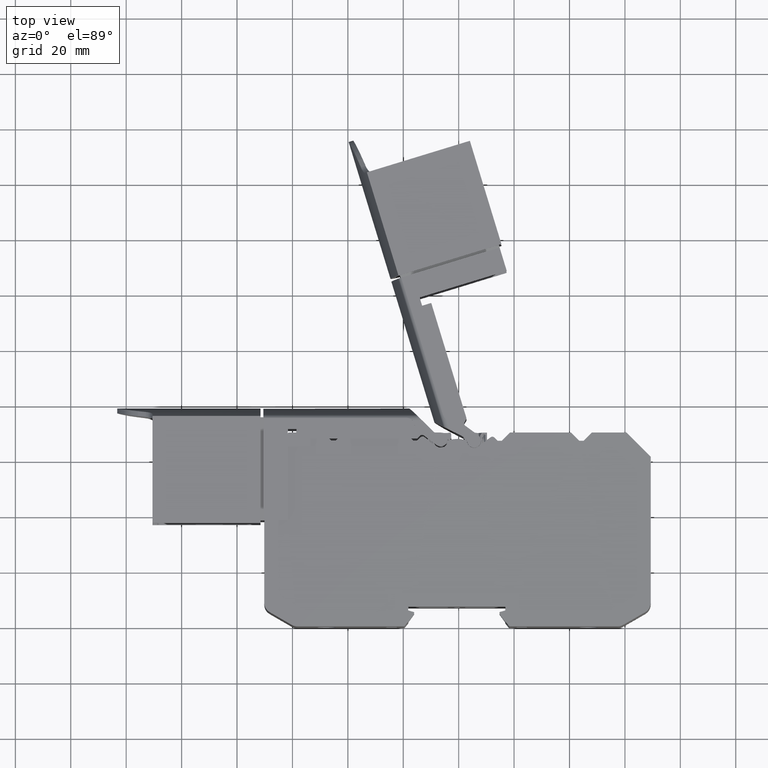
[diagram: clean part render]
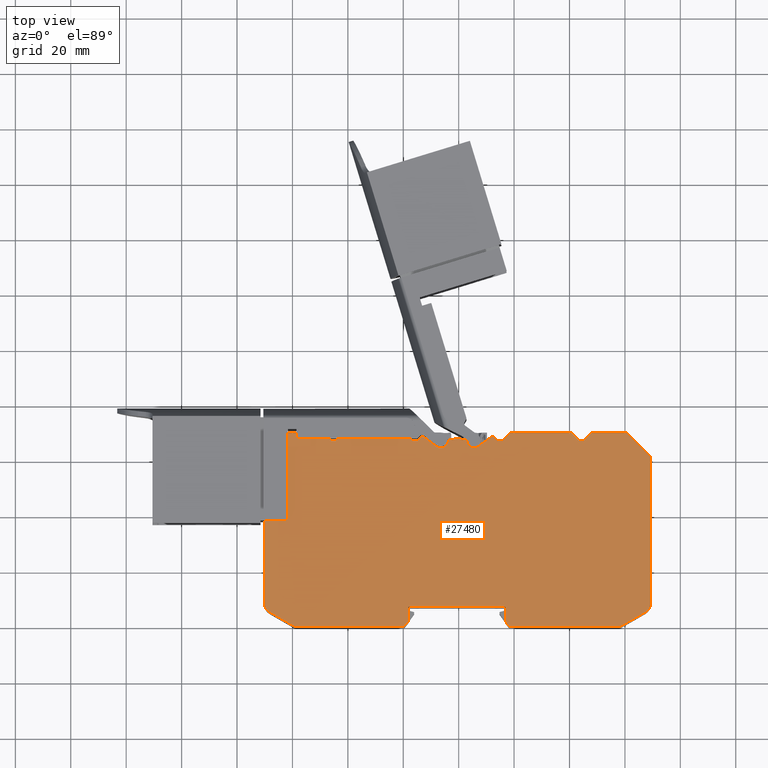
[diagram: same view with one face highlighted and labeled with its STEP entity id]
A machine part, top view. The second image highlights one B-rep face of the part: STEP entity #27480.
In plain terms, the highlighted planar face has unit normal (0, 0, -1).
Its self-contained STEP definition (entity closure, byte-faithful):
#757 = VERTEX_POINT ( 'NONE', #40493 ) ;
#787 = VERTEX_POINT ( 'NONE', #40451 ) ;
#795 = VERTEX_POINT ( 'NONE', #40452 ) ;
#798 = VERTEX_POINT ( 'NONE', #40457 ) ;
#835 = VERTEX_POINT ( 'NONE', #40529 ) ;
#844 = VERTEX_POINT ( 'NONE', #40540 ) ;
#925 = VERTEX_POINT ( 'NONE', #40546 ) ;
#927 = VERTEX_POINT ( 'NONE', #40536 ) ;
#933 = VERTEX_POINT ( 'NONE', #40557 ) ;
#1645 = VERTEX_POINT ( 'NONE', #40685 ) ;
#1654 = VERTEX_POINT ( 'NONE', #40705 ) ;
#1656 = VERTEX_POINT ( 'NONE', #40692 ) ;
#1678 = VERTEX_POINT ( 'NONE', #40683 ) ;
#1772 = VERTEX_POINT ( 'NONE', #38809 ) ;
#1786 = VERTEX_POINT ( 'NONE', #38825 ) ;
#1916 = VERTEX_POINT ( 'NONE', #28815 ) ;
#2054 = VERTEX_POINT ( 'NONE', #28927 ) ;
#2056 = VERTEX_POINT ( 'NONE', #28945 ) ;
#2057 = VERTEX_POINT ( 'NONE', #28978 ) ;
#2061 = VERTEX_POINT ( 'NONE', #28979 ) ;
#2064 = VERTEX_POINT ( 'NONE', #28970 ) ;
#2065 = VERTEX_POINT ( 'NONE', #28962 ) ;
#2074 = VERTEX_POINT ( 'NONE', #28943 ) ;
#2075 = VERTEX_POINT ( 'NONE', #28923 ) ;
#2082 = VERTEX_POINT ( 'NONE', #28928 ) ;
#2084 = VERTEX_POINT ( 'NONE', #28952 ) ;
#2085 = VERTEX_POINT ( 'NONE', #28984 ) ;
#2088 = VERTEX_POINT ( 'NONE', #28954 ) ;
#2091 = VERTEX_POINT ( 'NONE', #28973 ) ;
#2093 = VERTEX_POINT ( 'NONE', #28977 ) ;
#2922 = CARTESIAN_POINT ( 'NONE',  ( -14.92803972407406100, 286.9983646488885800, 34.17996959994485500 ) ) ;
#2930 = CARTESIAN_POINT ( 'NONE',  ( -16.43301293408643100, 286.9983646488885800, 34.17996959994485500 ) ) ;
#2938 = CARTESIAN_POINT ( 'NONE',  ( 2.883818337371597500, 286.9183139729704000, 34.17996959994511000 ) ) ;
#2950 = DIRECTION ( 'NONE',  ( 1.396105453466134000E-014, 3.381896538890620300E-014, -1.000000000000000000 ) ) ;
#2953 = FACE_OUTER_BOUND ( 'NONE', #9561, .T. ) ;
#2960 = DIRECTION ( 'NONE',  ( 0.0000000000000000000, 1.000000000000000000, 3.381896538890620300E-014 ) ) ;
#2966 = CARTESIAN_POINT ( 'NONE',  ( 76.26451876621800400, 196.8919405279740100, 34.17996959994309900 ) ) ;
#2970 = PLANE ( 'NONE',  #3385 ) ;
#2977 = CARTESIAN_POINT ( 'NONE',  ( -3.749805739735257800, 286.9183139729704500, 34.17996959994503200 ) ) ;
#3030 = CARTESIAN_POINT ( 'NONE',  ( -43.71668567164122300, 287.7146863452242100, 34.17996959994468400 ) ) ;
#3096 = CARTESIAN_POINT ( 'NONE',  ( 2.563264150888267900, 287.2253406078467600, 34.17996959994512500 ) ) ;
#3099 = CARTESIAN_POINT ( 'NONE',  ( -3.429251553251884100, 287.2253406078467600, 34.17996959994503900 ) ) ;
#3385 = AXIS2_PLACEMENT_3D ( 'NONE', #2966, #2950, #2960 ) ;
#3906 = CARTESIAN_POINT ( 'NONE',  ( -45.93301317540946400, 286.9983642033046200, 34.17996959994444200 ) ) ;
#3962 = CARTESIAN_POINT ( 'NONE',  ( -44.43300886197862100, 286.9983642468176900, 34.17996959994450600 ) ) ;
#4047 = CARTESIAN_POINT ( 'NONE',  ( 11.55811169425197200, 288.2903461235462700, 34.17996959994529500 ) ) ;
#4056 = CARTESIAN_POINT ( 'NONE',  ( 12.15686034543121300, 288.4894091393139200, 34.17996959994531600 ) ) ;
#4082 = CARTESIAN_POINT ( 'NONE',  ( 5.567177532460623200, 284.4454128013246100, 34.17996959994507500 ) ) ;
#4164 = CARTESIAN_POINT ( 'NONE',  ( 12.15686034543121300, 288.4894091393139200, 34.17996959994531600 ) ) ;
#4186 = CARTESIAN_POINT ( 'NONE',  ( 11.72949561307907200, 288.4184659285392100, 34.17996959994530200 ) ) ;
#4191 = CARTESIAN_POINT ( 'NONE',  ( 11.94288106591101000, 288.4894091393139200, 34.17996959994530900 ) ) ;
#4194 = CARTESIAN_POINT ( 'NONE',  ( 11.55811169425197200, 288.2903461235462700, 34.17996959994529500 ) ) ;
#4212 = CARTESIAN_POINT ( 'NONE',  ( -6.433164934824338500, 284.4454128013246100, 34.17996959994492600 ) ) ;
#4218 = CARTESIAN_POINT ( 'NONE',  ( -4.035739567493349600, 286.1277311240090700, 34.17996959994503200 ) ) ;
#4223 = CARTESIAN_POINT ( 'NONE',  ( -4.212591472419614300, 285.6387534015984200, 34.17996959994501800 ) ) ;
#4228 = CARTESIAN_POINT ( 'NONE',  ( -5.394404735934530800, 284.6092736201822500, 34.17996959994496800 ) ) ;
#4235 = CARTESIAN_POINT ( 'NONE',  ( -5.913188195610857200, 284.4454128013246100, 34.17996959994495400 ) ) ;
#4236 = CARTESIAN_POINT ( 'NONE',  ( -4.543129591019273900, 285.2066293474853800, 34.17996959994499700 ) ) ;
#4321 = CARTESIAN_POINT ( 'NONE',  ( -1.311753776222546400, 287.6846125013441300, 34.17996959994508900 ) ) ;
#4336 = CARTESIAN_POINT ( 'NONE',  ( -0.4329937011818170100, 287.6846106740138700, 34.17996959994510300 ) ) ;
#4338 = CARTESIAN_POINT ( 'NONE',  ( 7.093634224713057700, 284.9529063413944500, 34.17996959994511000 ) ) ;
#4339 = CARTESIAN_POINT ( 'NONE',  ( 6.872296683494587600, 284.7877280929262700, 34.17996959994508900 ) ) ;
#4357 = CARTESIAN_POINT ( 'NONE',  ( -2.190443583997348000, 287.5681152280287700, 34.17996959994507500 ) ) ;
#4366 = CARTESIAN_POINT ( 'NONE',  ( -3.038843997621544900, 287.3391259360650500, 34.17996959994505300 ) ) ;
#4374 = CARTESIAN_POINT ( 'NONE',  ( 6.110725816094513300, 284.4890401531324100, 34.17996959994506800 ) ) ;
#4391 = CARTESIAN_POINT ( 'NONE',  ( 5.842624481265537500, 284.4456408269697400, 34.17996959994508900 ) ) ;
#4395 = CARTESIAN_POINT ( 'NONE',  ( 5.567177532460623200, 284.4454128013246100, 34.17996959994507500 ) ) ;
#4416 = CARTESIAN_POINT ( 'NONE',  ( 6.632237257800623500, 284.6621814064932300, 34.17996959994509600 ) ) ;
#6941 = VERTEX_POINT ( 'NONE', #29031 ) ;
#6990 = VERTEX_POINT ( 'NONE', #29014 ) ;
#6994 = VERTEX_POINT ( 'NONE', #29028 ) ;
#6999 = VERTEX_POINT ( 'NONE', #29036 ) ;
#7021 = VERTEX_POINT ( 'NONE', #29018 ) ;
#7025 = VERTEX_POINT ( 'NONE', #28996 ) ;
#7041 = VERTEX_POINT ( 'NONE', #29006 ) ;
#7049 = VERTEX_POINT ( 'NONE', #29027 ) ;
#7085 = CARTESIAN_POINT ( 'NONE',  ( -13.02277790567889000, 288.4894091393138100, 34.17996959994495400 ) ) ;
#7086 = VERTEX_POINT ( 'NONE', #29007 ) ;
#7097 = VERTEX_POINT ( 'NONE', #29049 ) ;
#7100 = VERTEX_POINT ( 'NONE', #28994 ) ;
#7107 = CARTESIAN_POINT ( 'NONE',  ( -13.72988468686487800, 288.1965159205007600, 34.17996959994493300 ) ) ;
#7108 = VERTEX_POINT ( 'NONE', #29069 ) ;
#7141 = CARTESIAN_POINT ( 'NONE',  ( -13.28457729347779200, 288.4894091393138100, 34.17996959994494700 ) ) ;
#7147 = CARTESIAN_POINT ( 'NONE',  ( -13.54476456444168700, 288.3816360429238400, 34.17996959994494000 ) ) ;
#7591 = VECTOR ( 'NONE', #26436, 1000.000000000000000 ) ;
#7598 = VECTOR ( 'NONE', #26495, 1000.000000000000000 ) ;
#7601 = AXIS2_PLACEMENT_3D ( 'NONE', #26309, #26324, #26310 ) ;
#7608 = VECTOR ( 'NONE', #26419, 1000.000000000000000 ) ;
#7609 = VECTOR ( 'NONE', #26406, 1000.000000000000000 ) ;
#7611 = VECTOR ( 'NONE', #26475, 1000.000000000000000 ) ;
#7621 = VECTOR ( 'NONE', #26331, 1000.000000000000000 ) ;
#7622 = VECTOR ( 'NONE', #26438, 1000.000000000000000 ) ;
#7625 = CIRCLE ( 'NONE', #7643, 4.000000000000003600 ) ;
#7626 = VECTOR ( 'NONE', #26446, 1000.000000000000000 ) ;
#7637 = VECTOR ( 'NONE', #26486, 1000.000000000000000 ) ;
#7643 = AXIS2_PLACEMENT_3D ( 'NONE', #26326, #26316, #26306 ) ;
#7954 = VECTOR ( 'NONE', #29737, 1000.000000000000000 ) ;
#7972 = VECTOR ( 'NONE', #29738, 1000.000000000000000 ) ;
#7977 = VECTOR ( 'NONE', #29878, 1000.000000000000000 ) ;
#7989 = VECTOR ( 'NONE', #29677, 1000.000000000000000 ) ;
#8008 = VECTOR ( 'NONE', #29860, 1000.000000000000200 ) ;
#8018 = VECTOR ( 'NONE', #32386, 1000.000000000000000 ) ;
#8021 = VECTOR ( 'NONE', #32478, 1000.000000000000000 ) ;
#8029 = VECTOR ( 'NONE', #28735, 1000.000000000000000 ) ;
#8034 = VECTOR ( 'NONE', #32590, 1000.000000000000000 ) ;
#8045 = VECTOR ( 'NONE', #29935, 1000.000000000000100 ) ;
#8057 = VECTOR ( 'NONE', #32375, 1000.000000000000100 ) ;
#8062 = VECTOR ( 'NONE', #32423, 1000.000000000000000 ) ;
#8066 = VECTOR ( 'NONE', #32512, 1000.000000000000000 ) ;
#8132 = VECTOR ( 'NONE', #32645, 1000.000000000000000 ) ;
#8288 = VECTOR ( 'NONE', #35218, 1000.000000000000000 ) ;
#8291 = VECTOR ( 'NONE', #35204, 1000.000000000000000 ) ;
#8293 = VECTOR ( 'NONE', #35219, 1000.000000000000100 ) ;
#8301 = VECTOR ( 'NONE', #35437, 1000.000000000000000 ) ;
#8305 = VECTOR ( 'NONE', #35399, 1000.000000000000100 ) ;
#8307 = VECTOR ( 'NONE', #35406, 1000.000000000000200 ) ;
#8314 = VECTOR ( 'NONE', #35417, 1000.000000000000000 ) ;
#8846 = VECTOR ( 'NONE', #15176, 1000.000000000000000 ) ;
#8918 = VECTOR ( 'NONE', #26225, 1000.000000000000100 ) ;
#9026 = VECTOR ( 'NONE', #16860, 1000.000000000000000 ) ;
#9031 = VECTOR ( 'NONE', #16932, 1000.000000000000100 ) ;
#9116 = CIRCLE ( 'NONE', #7601, 3.999999523161101900 ) ;
#9275 = VECTOR ( 'NONE', #21158, 1000.000000000000100 ) ;
#9561 = EDGE_LOOP ( 'NONE', ( #39969, #39952, #39962, #39922, #40003, #39960, #39992, #39995, #39990, #39994, #39978, #39970, #39949, #40030, #40032, #39935, #39930, #39976, #39946, #39933, #40034, #40026, #39942, #39988, #39965, #40028, #39967, #40078, #40011, #39955, #40081, #40082, #40111, #40113, #40015, #40046, #40108, #40116, #40099, #40076, #40021, #40085, #40023, #40070, #40036, #40115, #40100, #40060, #40090, #40120, #40089, #40042, #40101, #40062, #40104, #40083, #40040, #40102, #40052, #40066, #40117 ) ) ;
#10960 = CARTESIAN_POINT ( 'NONE',  ( -13.72988468686487800, 288.1965159205007600, 34.17996959994493300 ) ) ;
#10982 = CARTESIAN_POINT ( 'NONE',  ( -13.02277790567889000, 288.4894091393138100, 34.17996959994495400 ) ) ;
#10994 = CARTESIAN_POINT ( 'NONE',  ( -3.038843997621544900, 287.3391259360650500, 34.17996959994505300 ) ) ;
#11001 = CARTESIAN_POINT ( 'NONE',  ( -4.035739567493349600, 286.1277311240090700, 34.17996959994503200 ) ) ;
#11008 = CARTESIAN_POINT ( 'NONE',  ( -6.433164934824338500, 284.4454128013246100, 34.17996959994492600 ) ) ;
#11009 = CARTESIAN_POINT ( 'NONE',  ( 7.093634224713057700, 284.9529063413944500, 34.17996959994511000 ) ) ;
#11026 = CARTESIAN_POINT ( 'NONE',  ( -0.4329937011818170100, 287.6846106740138700, 34.17996959994510300 ) ) ;
#12023 = EDGE_CURVE ( 'NONE', #2057, #2074, #29679, .T. ) ;
#12024 = EDGE_CURVE ( 'NONE', #2084, #2091, #18757, .T. ) ;
#12031 = EDGE_CURVE ( 'NONE', #2093, #1772, #29736, .T. ) ;
#12032 = EDGE_CURVE ( 'NONE', #18525, #757, #18731, .T. ) ;
#12033 = EDGE_CURVE ( 'NONE', #925, #2064, #18738, .T. ) ;
#12034 = EDGE_CURVE ( 'NONE', #2075, #2085, #29744, .T. ) ;
#12043 = EDGE_CURVE ( 'NONE', #1786, #933, #29818, .T. ) ;
#12046 = EDGE_CURVE ( 'NONE', #2091, #2088, #18749, .T. ) ;
#12047 = EDGE_CURVE ( 'NONE', #18581, #1916, #18736, .T. ) ;
#12049 = EDGE_CURVE ( 'NONE', #37906, #2093, #18754, .T. ) ;
#12053 = EDGE_CURVE ( 'NONE', #36558, #1654, #29906, .T. ) ;
#12059 = EDGE_CURVE ( 'NONE', #927, #844, #29943, .T. ) ;
#12065 = EDGE_CURVE ( 'NONE', #798, #1656, #29938, .T. ) ;
#12085 = EDGE_CURVE ( 'NONE', #1645, #37902, #18704, .T. ) ;
#12088 = EDGE_CURVE ( 'NONE', #933, #927, #32400, .T. ) ;
#12091 = EDGE_CURVE ( 'NONE', #1678, #787, #32372, .T. ) ;
#12096 = EDGE_CURVE ( 'NONE', #1645, #36549, #32450, .T. ) ;
#12097 = EDGE_CURVE ( 'NONE', #36742, #18551, #18723, .T. ) ;
#12109 = EDGE_CURVE ( 'NONE', #787, #798, #32490, .T. ) ;
#12112 = EDGE_CURVE ( 'NONE', #1772, #1678, #32486, .T. ) ;
#12124 = EDGE_CURVE ( 'NONE', #757, #37860, #18726, .T. ) ;
#12134 = EDGE_CURVE ( 'NONE', #1916, #36691, #18700, .T. ) ;
#12136 = EDGE_CURVE ( 'NONE', #1656, #1786, #32600, .T. ) ;
#12147 = EDGE_CURVE ( 'NONE', #36517, #18563, #32663, .T. ) ;
#12411 = EDGE_CURVE ( 'NONE', #2064, #795, #18847, .T. ) ;
#12413 = EDGE_CURVE ( 'NONE', #18540, #2085, #18890, .T. ) ;
#12426 = EDGE_CURVE ( 'NONE', #2082, #2057, #35172, .T. ) ;
#12429 = EDGE_CURVE ( 'NONE', #2054, #2061, #35177, .T. ) ;
#12434 = EDGE_CURVE ( 'NONE', #835, #37652, #35243, .T. ) ;
#12462 = EDGE_CURVE ( 'NONE', #2065, #2075, #35384, .T. ) ;
#12467 = EDGE_CURVE ( 'NONE', #2061, #2056, #35382, .T. ) ;
#12470 = EDGE_CURVE ( 'NONE', #18559, #2065, #18853, .T. ) ;
#12471 = EDGE_CURVE ( 'NONE', #36432, #18535, #35389, .T. ) ;
#12473 = EDGE_CURVE ( 'NONE', #2074, #835, #35454, .T. ) ;
#15176 = DIRECTION ( 'NONE',  ( 1.000000000000000000, 1.547653322927949800E-016, 5.234003416212601300E-030 ) ) ;
#15189 = CARTESIAN_POINT ( 'NONE',  ( -15.09807472525005100, 286.9983646488885800, 34.17996959994444200 ) ) ;
#15209 = LINE ( 'NONE', #15189, #8846 ) ;
#16860 = DIRECTION ( 'NONE',  ( 1.000000000000000000, 1.547653322927949800E-016, 5.234003416212601300E-030 ) ) ;
#16873 = LINE ( 'NONE', #16883, #9026 ) ;
#16883 = CARTESIAN_POINT ( 'NONE',  ( -15.09807472525005100, 286.9983646488885800, 34.17996959994485500 ) ) ;
#16929 = LINE ( 'NONE', #16942, #9031 ) ;
#16932 = DIRECTION ( 'NONE',  ( -0.7071067811865474600, -0.7071067811865474600, -0.0000000000000000000 ) ) ;
#16942 = CARTESIAN_POINT ( 'NONE',  ( -44.43301121369088200, 286.9983608031745300, 34.17996959994468400 ) ) ;
#17158 = CARTESIAN_POINT ( 'NONE',  ( 2.563264150888267900, 287.2253406078467600, 34.17996959994512500 ) ) ;
#17160 = CARTESIAN_POINT ( 'NONE',  ( 2.709541871612905600, 287.1794603313850300, 34.17996959994512500 ) ) ;
#17165 = CARTESIAN_POINT ( 'NONE',  ( 2.831677549128464000, 287.0624788423040200, 34.17996959994512500 ) ) ;
#17167 = CARTESIAN_POINT ( 'NONE',  ( 2.883818337371597500, 286.9183139729704000, 34.17996959994511000 ) ) ;
#17352 = CARTESIAN_POINT ( 'NONE',  ( -3.429251553251884100, 287.2253406078467600, 34.17996959994503900 ) ) ;
#17389 = CARTESIAN_POINT ( 'NONE',  ( -3.749805739735257800, 286.9183139729704500, 34.17996959994503200 ) ) ;
#17392 = CARTESIAN_POINT ( 'NONE',  ( -3.697664951492138000, 287.0624788423040700, 34.17996959994503900 ) ) ;
#17393 = CARTESIAN_POINT ( 'NONE',  ( -3.575529273976539200, 287.1794603313851400, 34.17996959994503900 ) ) ;
#18525 = VERTEX_POINT ( 'NONE', #11009 ) ;
#18535 = VERTEX_POINT ( 'NONE', #10960 ) ;
#18540 = VERTEX_POINT ( 'NONE', #11008 ) ;
#18551 = VERTEX_POINT ( 'NONE', #10994 ) ;
#18559 = VERTEX_POINT ( 'NONE', #10982 ) ;
#18563 = VERTEX_POINT ( 'NONE', #11001 ) ;
#18581 = VERTEX_POINT ( 'NONE', #11026 ) ;
#18700 = B_SPLINE_CURVE_WITH_KNOTS ( 'NONE', 3,
 ( #32577, #32584, #32603, #32604 ),
 .UNSPECIFIED., .F., .F.,
 ( 4, 4 ),
 ( 0.0000000000000000000, 1.000000000000000000 ),
 .UNSPECIFIED. ) ;
#18704 = B_SPLINE_CURVE_WITH_KNOTS ( 'NONE', 3,
 ( #32398, #32397, #32401, #32399, #32384, #32369 ),
 .UNSPECIFIED., .F., .F.,
 ( 4, 2, 4 ),
 ( 0.0000000000000000000, 0.5000000000000000000, 1.000000000000000000 ),
 .UNSPECIFIED. ) ;
#18723 = B_SPLINE_CURVE_WITH_KNOTS ( 'NONE', 3,
 ( #32441, #32453, #32420, #32439 ),
 .UNSPECIFIED., .F., .F.,
 ( 4, 4 ),
 ( 0.0000000000000000000, 1.000000000000000000 ),
 .UNSPECIFIED. ) ;
#18726 = B_SPLINE_CURVE_WITH_KNOTS ( 'NONE', 3,
 ( #32560, #32551, #32552, #32529 ),
 .UNSPECIFIED., .F., .F.,
 ( 4, 4 ),
 ( 0.0000000000000000000, 1.000000000000000000 ),
 .UNSPECIFIED. ) ;
#18731 = B_SPLINE_CURVE_WITH_KNOTS ( 'NONE', 3,
 ( #29782, #29783, #29741, #29784 ),
 .UNSPECIFIED., .F., .F.,
 ( 4, 4 ),
 ( 0.0000000000000000000, 1.000000000000000000 ),
 .UNSPECIFIED. ) ;
#18736 = B_SPLINE_CURVE_WITH_KNOTS ( 'NONE', 3,
 ( #29847, #29791, #29826, #29832 ),
 .UNSPECIFIED., .F., .F.,
 ( 4, 4 ),
 ( 0.0000000000000000000, 1.000000000000000000 ),
 .UNSPECIFIED. ) ;
#18738 = B_SPLINE_CURVE_WITH_KNOTS ( 'NONE', 3,
 ( #29760, #29742, #29749, #29740 ),
 .UNSPECIFIED., .F., .F.,
 ( 4, 4 ),
 ( 0.0000000000000000000, 1.000000000000000000 ),
 .UNSPECIFIED. ) ;
#18749 = B_SPLINE_CURVE_WITH_KNOTS ( 'NONE', 3,
 ( #29842, #29792, #29823, #29821 ),
 .UNSPECIFIED., .F., .F.,
 ( 4, 4 ),
 ( 0.0000000000000000000, 1.000000000000000000 ),
 .UNSPECIFIED. ) ;
#18754 = B_SPLINE_CURVE_WITH_KNOTS ( 'NONE', 3,
 ( #29794, #29800, #29922, #29884 ),
 .UNSPECIFIED., .F., .F.,
 ( 4, 4 ),
 ( 0.0000000000000000000, 1.000000000000000000 ),
 .UNSPECIFIED. ) ;
#18757 = B_SPLINE_CURVE_WITH_KNOTS ( 'NONE', 3,
 ( #29720, #29675, #29759, #29730 ),
 .UNSPECIFIED., .F., .F.,
 ( 4, 4 ),
 ( 0.0000000000000000000, 1.000000000000000000 ),
 .UNSPECIFIED. ) ;
#18847 = B_SPLINE_CURVE_WITH_KNOTS ( 'NONE', 3,
 ( #35140, #35119, #35144, #35154 ),
 .UNSPECIFIED., .F., .F.,
 ( 4, 4 ),
 ( 0.0000000000000000000, 1.000000000000000000 ),
 .UNSPECIFIED. ) ;
#18853 = B_SPLINE_CURVE_WITH_KNOTS ( 'NONE', 3,
 ( #35395, #35378, #35390, #35415 ),
 .UNSPECIFIED., .F., .F.,
 ( 4, 4 ),
 ( 0.0000000000000000000, 1.000000000000000000 ),
 .UNSPECIFIED. ) ;
#18890 = B_SPLINE_CURVE_WITH_KNOTS ( 'NONE', 3,
 ( #35139, #35152, #35109, #35107, #35151, #35145 ),
 .UNSPECIFIED., .F., .F.,
 ( 4, 2, 4 ),
 ( 0.0000000000000000000, 0.5000000000000000000, 1.000000000000000000 ),
 .UNSPECIFIED. ) ;
#19311 = B_SPLINE_CURVE_WITH_KNOTS ( 'NONE', 3,
 ( #17158, #17160, #17165, #17167 ),
 .UNSPECIFIED., .F., .F.,
 ( 4, 4 ),
 ( 0.0000000000000000000, 1.000000000000000000 ),
 .UNSPECIFIED. ) ;
#19312 = B_SPLINE_CURVE_WITH_KNOTS ( 'NONE', 3,
 ( #17389, #17392, #17393, #17352 ),
 .UNSPECIFIED., .F., .F.,
 ( 4, 4 ),
 ( 0.0000000000000000000, 1.000000000000000000 ),
 .UNSPECIFIED. ) ;
#19488 = B_SPLINE_CURVE_WITH_KNOTS ( 'NONE', 3,
 ( #26338, #26339, #26359, #26362 ),
 .UNSPECIFIED., .F., .F.,
 ( 4, 4 ),
 ( 0.0000000000000000000, 1.000000000000000000 ),
 .UNSPECIFIED. ) ;
#19494 = B_SPLINE_CURVE_WITH_KNOTS ( 'NONE', 3,
 ( #26376, #26377, #26391, #26349 ),
 .UNSPECIFIED., .F., .F.,
 ( 4, 4 ),
 ( 0.0000000000000000000, 1.000000000000000000 ),
 .UNSPECIFIED. ) ;
#19507 = B_SPLINE_CURVE_WITH_KNOTS ( 'NONE', 3,
 ( #26290, #26254, #26298, #26255 ),
 .UNSPECIFIED., .F., .F.,
 ( 4, 4 ),
 ( 0.0000000000000000000, 1.000000000000000000 ),
 .UNSPECIFIED. ) ;
#19560 = B_SPLINE_CURVE_WITH_KNOTS ( 'NONE', 3,
 ( #26490, #26530, #26532, #26511, #26512, #26527 ),
 .UNSPECIFIED., .F., .F.,
 ( 4, 2, 4 ),
 ( 0.0000000000000000000, 0.5000000000000000000, 1.000000000000000000 ),
 .UNSPECIFIED. ) ;
#19601 = B_SPLINE_CURVE_WITH_KNOTS ( 'NONE', 3,
 ( #4366, #4357, #4321, #4336 ),
 .UNSPECIFIED., .F., .F.,
 ( 4, 4 ),
 ( 0.0000000000000000000, 1.000000000000000000 ),
 .UNSPECIFIED. ) ;
#19604 = B_SPLINE_CURVE_WITH_KNOTS ( 'NONE', 3,
 ( #4338, #4339, #4416, #4374, #4391, #4395 ),
 .UNSPECIFIED., .F., .F.,
 ( 4, 2, 4 ),
 ( 0.0000000000000000000, 0.5000000000000000000, 1.000000000000000000 ),
 .UNSPECIFIED. ) ;
#19606 = B_SPLINE_CURVE_WITH_KNOTS ( 'NONE', 3,
 ( #4194, #4186, #4191, #4164 ),
 .UNSPECIFIED., .F., .F.,
 ( 4, 4 ),
 ( 0.0000000000000000000, 1.000000000000000000 ),
 .UNSPECIFIED. ) ;
#19618 = B_SPLINE_CURVE_WITH_KNOTS ( 'NONE', 3,
 ( #4212, #4235, #4228, #4236, #4223, #4218 ),
 .UNSPECIFIED., .F., .F.,
 ( 4, 2, 4 ),
 ( 0.0000000000000000000, 0.5000000000000000000, 1.000000000000000000 ),
 .UNSPECIFIED. ) ;
#19738 = B_SPLINE_CURVE_WITH_KNOTS ( 'NONE', 3,
 ( #7107, #7147, #7141, #7085 ),
 .UNSPECIFIED., .F., .F.,
 ( 4, 4 ),
 ( 0.0000000000000000000, 1.000000000000000000 ),
 .UNSPECIFIED. ) ;
#21090 = CARTESIAN_POINT ( 'NONE',  ( -16.43301121369419700, 286.9983608031745300, 34.17996959994485500 ) ) ;
#21158 = DIRECTION ( 'NONE',  ( -0.7071067811865474600, 0.7071067811865474600, -0.0000000000000000000 ) ) ;
#21179 = LINE ( 'NONE', #21090, #9275 ) ;
#22602 = EDGE_CURVE ( 'NONE', #37652, #37644, #15209, .T. ) ;
#22870 = EDGE_CURVE ( 'NONE', #36479, #36432, #16873, .T. ) ;
#22885 = EDGE_CURVE ( 'NONE', #36558, #37644, #16929, .T. ) ;
#22927 = EDGE_CURVE ( 'NONE', #36691, #36549, #19311, .T. ) ;
#22961 = EDGE_CURVE ( 'NONE', #36517, #36742, #19312, .T. ) ;
#23305 = EDGE_CURVE ( 'NONE', #36479, #1654, #21179, .T. ) ;
#23896 = EDGE_CURVE ( 'NONE', #2056, #2082, #26203, .T. ) ;
#23919 = EDGE_CURVE ( 'NONE', #2088, #7025, #19507, .T. ) ;
#23935 = EDGE_CURVE ( 'NONE', #7086, #6994, #9116, .T. ) ;
#23947 = EDGE_CURVE ( 'NONE', #7049, #844, #26318, .T. ) ;
#23954 = EDGE_CURVE ( 'NONE', #7041, #6990, #7625, .T. ) ;
#23968 = EDGE_CURVE ( 'NONE', #6999, #6941, #19488, .T. ) ;
#23970 = EDGE_CURVE ( 'NONE', #7100, #925, #19494, .T. ) ;
#24002 = EDGE_CURVE ( 'NONE', #7021, #6999, #26354, .T. ) ;
#24014 = EDGE_CURVE ( 'NONE', #7025, #7086, #26403, .T. ) ;
#24018 = EDGE_CURVE ( 'NONE', #6994, #7041, #26400, .T. ) ;
#24023 = EDGE_CURVE ( 'NONE', #6990, #2054, #26428, .T. ) ;
#24030 = EDGE_CURVE ( 'NONE', #7097, #2084, #26415, .T. ) ;
#24037 = EDGE_CURVE ( 'NONE', #7108, #7097, #26481, .T. ) ;
#24049 = EDGE_CURVE ( 'NONE', #6941, #7100, #26466, .T. ) ;
#24065 = EDGE_CURVE ( 'NONE', #795, #7108, #26451, .T. ) ;
#24081 = EDGE_CURVE ( 'NONE', #7049, #7021, #19560, .T. ) ;
#26203 = LINE ( 'NONE', #26217, #8918 ) ;
#26217 = CARTESIAN_POINT ( 'NONE',  ( -61.70504443945393500, 289.7263318105647200, 34.17996959994430700 ) ) ;
#26225 = DIRECTION ( 'NONE',  ( 0.7071067811953493100, 0.7071067811777456100, 5.410970561755389600E-014 ) ) ;
#26254 = CARTESIAN_POINT ( 'NONE',  ( -19.61101592954322500, 220.0611905595741600, 34.17996959994255200 ) ) ;
#26255 = CARTESIAN_POINT ( 'NONE',  ( -19.89159177715297800, 219.9983640700941700, 34.17996959994258100 ) ) ;
#26290 = CARTESIAN_POINT ( 'NONE',  ( -19.51753938351058400, 220.1665737646147000, 34.17996959994257400 ) ) ;
#26298 = CARTESIAN_POINT ( 'NONE',  ( -19.75072487343553400, 219.9983640700950500, 34.17996959994255900 ) ) ;
#26306 = DIRECTION ( 'NONE',  ( 0.0000000000000000000, 1.000000000000000000, 3.295974604355930300E-014 ) ) ;
#26309 = CARTESIAN_POINT ( 'NONE',  ( -58.21764062778646600, 223.9983640700945100, 34.17996959994265900 ) ) ;
#26310 = DIRECTION ( 'NONE',  ( 0.0000000000000000000, 1.000000000000000000, 3.295974997268205000E-014 ) ) ;
#26316 = DIRECTION ( 'NONE',  ( 1.396105453466134000E-014, 3.382010624677094600E-014, -1.000000000000000000 ) ) ;
#26318 = LINE ( 'NONE', #26333, #7621 ) ;
#26324 = DIRECTION ( 'NONE',  ( 1.396105453466134000E-014, 3.381896538890620300E-014, -1.000000000000000000 ) ) ;
#26326 = CARTESIAN_POINT ( 'NONE',  ( -66.18301121369266600, 228.5971734726690800, 34.17996959994251700 ) ) ;
#26331 = DIRECTION ( 'NONE',  ( 6.399930961798722700E-007, 0.9999999999997952700, -0.0000000000000000000 ) ) ;
#26333 = CARTESIAN_POINT ( 'NONE',  ( 69.31800889733591500, 280.9973800334497000, 34.17996959994400200 ) ) ;
#26338 = CARTESIAN_POINT ( 'NONE',  ( 59.35168790805956700, 220.5342628679106600, 34.17996959994383100 ) ) ;
#26339 = CARTESIAN_POINT ( 'NONE',  ( 58.74708819205628200, 220.1851970591241900, 34.17996959994382400 ) ) ;
#26349 = CARTESIAN_POINT ( 'NONE',  ( 18.15337432028567800, 220.1665737646149500, 34.17996959994334800 ) ) ;
#26354 = LINE ( 'NONE', #26435, #7608 ) ;
#26359 = CARTESIAN_POINT ( 'NONE',  ( 58.04981976405368700, 219.9983645469333700, 34.17996959994381000 ) ) ;
#26362 = CARTESIAN_POINT ( 'NONE',  ( 57.35168814648018600, 219.9983642687867300, 34.17996959994372500 ) ) ;
#26376 = CARTESIAN_POINT ( 'NONE',  ( 18.52742671392761100, 219.9983640700942300, 34.17996959994356800 ) ) ;
#26377 = CARTESIAN_POINT ( 'NONE',  ( 18.38655981021064200, 219.9983640700953300, 34.17996959994374600 ) ) ;
#26391 = CARTESIAN_POINT ( 'NONE',  ( 18.24685086631834400, 220.0611905595745000, 34.17996959994375300 ) ) ;
#26396 = CARTESIAN_POINT ( 'NONE',  ( -68.43297629263304300, 225.2773892631455800, 34.17996959994251700 ) ) ;
#26400 = LINE ( 'NONE', #26396, #7591 ) ;
#26403 = LINE ( 'NONE', #26407, #7609 ) ;
#26406 = DIRECTION ( 'NONE',  ( -1.000000000000000000, -1.355354771754316200E-028, -3.105775495142951400E-042 ) ) ;
#26407 = CARTESIAN_POINT ( 'NONE',  ( -26.33297629263504900, 219.9983640700939100, 34.17996959994260900 ) ) ;
#26415 = LINE ( 'NONE', #26416, #7611 ) ;
#26416 = CARTESIAN_POINT ( 'NONE',  ( -18.18208253161217400, 196.8919405279740100, 34.17996959994177800 ) ) ;
#26418 = CARTESIAN_POINT ( 'NONE',  ( -70.18301121369266600, 228.7414908782774900, 34.17996959994226800 ) ) ;
#26419 = DIRECTION ( 'NONE',  ( -0.8660254037844387100, -0.4999999999999998900, -0.0000000000000000000 ) ) ;
#26428 = LINE ( 'NONE', #26418, #7622 ) ;
#26435 = CARTESIAN_POINT ( 'NONE',  ( 67.56702381132417700, 225.2773892631438500, 34.17996959994390200 ) ) ;
#26436 = DIRECTION ( 'NONE',  ( -0.8660254037844387100, 0.4999999999999998900, -0.0000000000000000000 ) ) ;
#26438 = DIRECTION ( 'NONE',  ( 1.585610419494235100E-028, 1.000000000000000000, 2.213679353728626000E-042 ) ) ;
#26446 = DIRECTION ( 'NONE',  ( -1.000000000000000000, -0.0000000000000000000, -0.0000000000000000000 ) ) ;
#26451 = LINE ( 'NONE', #26452, #7598 ) ;
#26452 = CARTESIAN_POINT ( 'NONE',  ( 16.81791746838814200, 196.8919405279740100, 34.17996959994226800 ) ) ;
#26466 = LINE ( 'NONE', #26478, #7637 ) ;
#26469 = CARTESIAN_POINT ( 'NONE',  ( 17.06791746838516100, 227.1983640748848600, 34.17996959993919900 ) ) ;
#26475 = DIRECTION ( 'NONE',  ( -0.0000000000000000000, -1.000000000000000000, -3.381896538890620300E-014 ) ) ;
#26478 = CARTESIAN_POINT ( 'NONE',  ( 25.46702381132519800, 219.9983640700938600, 34.17996959994373900 ) ) ;
#26481 = LINE ( 'NONE', #26469, #7626 ) ;
#26486 = DIRECTION ( 'NONE',  ( -1.000000000000000000, -2.648425885396095000E-028, -8.032008844130190100E-042 ) ) ;
#26490 = CARTESIAN_POINT ( 'NONE',  ( 69.31797536190251200, 228.5977001289958800, 34.17996959994403000 ) ) ;
#26495 = DIRECTION ( 'NONE',  ( 0.0000000000000000000, 1.000000000000000000, 3.381896538890620300E-014 ) ) ;
#26511 = CARTESIAN_POINT ( 'NONE',  ( 68.43301050651021500, 225.9931022735888200, 34.17996959994395200 ) ) ;
#26512 = CARTESIAN_POINT ( 'NONE',  ( 67.92257478048117000, 225.4826667108974600, 34.17996959994391700 ) ) ;
#26527 = CARTESIAN_POINT ( 'NONE',  ( 67.31797536190330800, 225.1336010738295700, 34.17996959994390900 ) ) ;
#26530 = CARTESIAN_POINT ( 'NONE',  ( 69.31797491510326400, 227.8995688548593800, 34.17996959994401600 ) ) ;
#26532 = CARTESIAN_POINT ( 'NONE',  ( 69.13114216758531000, 227.2023008873449900, 34.17996959994400200 ) ) ;
#27480 = ADVANCED_FACE ( 'NONE', ( #2953 ), #2970, .F. ) ;
#28731 = CARTESIAN_POINT ( 'NONE',  ( 40.56701996561382400, 289.9983646488879000, 34.17996959994575000 ) ) ;
#28735 = DIRECTION ( 'NONE',  ( 0.7071069649713589400, -0.7071065974016884600, -1.471961297437300400E-014 ) ) ;
#28815 = CARTESIAN_POINT ( 'NONE',  ( 2.172856712211739700, 287.3391259045073400, 34.17996959994512500 ) ) ;
#28923 = CARTESIAN_POINT ( 'NONE',  ( -12.42688896425871200, 288.2924578232908200, 34.17996959994495400 ) ) ;
#28927 = CARTESIAN_POINT ( 'NONE',  ( -70.18301121369265200, 258.2726315360102900, 34.17996959994268000 ) ) ;
#28928 = CARTESIAN_POINT ( 'NONE',  ( -61.43301160112396500, 289.9983646488879000, 34.17996959994435000 ) ) ;
#28943 = CARTESIAN_POINT ( 'NONE',  ( -58.61129385466279000, 287.7146863452242700, 34.17996959994437800 ) ) ;
#28945 = CARTESIAN_POINT ( 'NONE',  ( -61.70504443945376500, 289.7263318105657400, 34.17996959994379600 ) ) ;
#28952 = CARTESIAN_POINT ( 'NONE',  ( -18.18208253161217400, 221.9537111893188800, 34.17996959994177100 ) ) ;
#28954 = CARTESIAN_POINT ( 'NONE',  ( -19.51753938351058400, 220.1665737646147000, 34.17996959994257400 ) ) ;
#28962 = CARTESIAN_POINT ( 'NONE',  ( -12.43018131228457800, 288.2949085356499900, 34.17996959994495400 ) ) ;
#28970 = CARTESIAN_POINT ( 'NONE',  ( 16.92329518961795600, 221.6466716851852500, 34.17996959994312800 ) ) ;
#28973 = CARTESIAN_POINT ( 'NONE',  ( -18.28746025284201000, 221.6466716851858800, 34.17996959994263100 ) ) ;
#28977 = CARTESIAN_POINT ( 'NONE',  ( 12.86396712661757700, 288.1965159205009900, 34.17996959994530900 ) ) ;
#28978 = CARTESIAN_POINT ( 'NONE',  ( -58.61129385466272600, 289.9983646488878400, 34.17996959994437800 ) ) ;
#28979 = CARTESIAN_POINT ( 'NONE',  ( -61.70504443944641100, 258.2726315360102900, 34.17996959994324900 ) ) ;
#28984 = CARTESIAN_POINT ( 'NONE',  ( -7.959621627076475500, 284.9529063413942300, 34.17996959994491800 ) ) ;
#28994 = CARTESIAN_POINT ( 'NONE',  ( 18.52742671392761100, 219.9983640700942300, 34.17996959994356800 ) ) ;
#28996 = CARTESIAN_POINT ( 'NONE',  ( -19.89159177715297800, 219.9983640700941700, 34.17996959994258100 ) ) ;
#29006 = CARTESIAN_POINT ( 'NONE',  ( -68.18301121369266600, 225.1330718575313500, 34.17996959994244600 ) ) ;
#29007 = CARTESIAN_POINT ( 'NONE',  ( -58.21764062778645900, 219.9983640700939400, 34.17996959994255900 ) ) ;
#29014 = CARTESIAN_POINT ( 'NONE',  ( -70.18301121369266600, 228.5971734726690800, 34.17996959994236800 ) ) ;
#29018 = CARTESIAN_POINT ( 'NONE',  ( 67.31797536190330800, 225.1336010738295700, 34.17996959994390900 ) ) ;
#29027 = CARTESIAN_POINT ( 'NONE',  ( 69.31797536190251200, 228.5977001289958800, 34.17996959994403000 ) ) ;
#29028 = CARTESIAN_POINT ( 'NONE',  ( -60.21764038936688500, 220.5342628679114800, 34.17996959994251700 ) ) ;
#29031 = CARTESIAN_POINT ( 'NONE',  ( 57.35168814648018600, 219.9983642687867300, 34.17996959994372500 ) ) ;
#29036 = CARTESIAN_POINT ( 'NONE',  ( 59.35168790805956700, 220.5342628679106600, 34.17996959994383100 ) ) ;
#29049 = CARTESIAN_POINT ( 'NONE',  ( -18.18208253161217400, 227.1983640748848400, 34.17996959994039900 ) ) ;
#29069 = CARTESIAN_POINT ( 'NONE',  ( 16.81791746838749900, 227.1983640748848400, 34.17996959994124500 ) ) ;
#29675 = CARTESIAN_POINT ( 'NONE',  ( -18.18208253161217100, 221.8435081046853800, 34.17996959994263100 ) ) ;
#29677 = DIRECTION ( 'NONE',  ( -0.0000000000000000000, -1.000000000000000000, -3.381896538890620300E-014 ) ) ;
#29679 = LINE ( 'NONE', #29724, #7989 ) ;
#29720 = CARTESIAN_POINT ( 'NONE',  ( -18.18208253161217400, 221.9537111893188800, 34.17996959994177100 ) ) ;
#29724 = CARTESIAN_POINT ( 'NONE',  ( -58.61129385466271200, 196.8919405279740100, 34.17996959994121700 ) ) ;
#29730 = CARTESIAN_POINT ( 'NONE',  ( -18.28746025284201000, 221.6466716851858800, 34.17996959994263100 ) ) ;
#29736 = LINE ( 'NONE', #29753, #7972 ) ;
#29737 = DIRECTION ( 'NONE',  ( 0.8009369842318518900, -0.5987486511797637200, -8.708526793840948100E-015 ) ) ;
#29738 = DIRECTION ( 'NONE',  ( 0.7071079570517655500, -0.7071056053193741600, -1.228556451034621400E-014 ) ) ;
#29740 = CARTESIAN_POINT ( 'NONE',  ( 16.92329518961795600, 221.6466716851852500, 34.17996959994312800 ) ) ;
#29741 = CARTESIAN_POINT ( 'NONE',  ( 9.533912912187046700, 286.7771616840653900, 34.17996959994511000 ) ) ;
#29742 = CARTESIAN_POINT ( 'NONE',  ( 17.72760899809044200, 220.6465713271305400, 34.17996959994309900 ) ) ;
#29744 = LINE ( 'NONE', #29752, #7954 ) ;
#29749 = CARTESIAN_POINT ( 'NONE',  ( 17.31729938818728300, 221.1402781019768300, 34.17996959994312800 ) ) ;
#29752 = CARTESIAN_POINT ( 'NONE',  ( -12.42688896425866900, 288.2924578232908200, 34.17996959994495400 ) ) ;
#29753 = CARTESIAN_POINT ( 'NONE',  ( 12.86396712661758100, 288.1965159205009900, 34.17996959994530200 ) ) ;
#29759 = CARTESIAN_POINT ( 'NONE',  ( -18.21978685192240700, 221.7336488699570200, 34.17996959994263100 ) ) ;
#29760 = CARTESIAN_POINT ( 'NONE',  ( 18.15337432028567800, 220.1665737646149500, 34.17996959994334800 ) ) ;
#29782 = CARTESIAN_POINT ( 'NONE',  ( 7.093634224713057700, 284.9529063413944500, 34.17996959994511000 ) ) ;
#29783 = CARTESIAN_POINT ( 'NONE',  ( 8.313773568450075800, 285.8650340127299500, 34.17996959994511000 ) ) ;
#29784 = CARTESIAN_POINT ( 'NONE',  ( 10.75405851552296700, 287.6892809820304300, 34.17996959994520300 ) ) ;
#29791 = CARTESIAN_POINT ( 'NONE',  ( 0.4457664301761107300, 287.6846125013442500, 34.17996959994511700 ) ) ;
#29792 = CARTESIAN_POINT ( 'NONE',  ( -18.68146445141160300, 221.1402781019771500, 34.17996959994263800 ) ) ;
#29794 = CARTESIAN_POINT ( 'NONE',  ( 12.15686034543121300, 288.4894091393139200, 34.17996959994531600 ) ) ;
#29798 = CARTESIAN_POINT ( 'NONE',  ( 45.06702352423296500, 286.9983646488886400, 34.17996959994570700 ) ) ;
#29800 = CARTESIAN_POINT ( 'NONE',  ( 12.41865973323020900, 288.4894091393139200, 34.17996959994533100 ) ) ;
#29818 = LINE ( 'NONE', #29798, #8008 ) ;
#29821 = CARTESIAN_POINT ( 'NONE',  ( -19.51753938351058400, 220.1665737646147000, 34.17996959994257400 ) ) ;
#29823 = CARTESIAN_POINT ( 'NONE',  ( -19.09177406131505700, 220.6465713271305400, 34.17996959994266600 ) ) ;
#29826 = CARTESIAN_POINT ( 'NONE',  ( 1.324456294245588600, 287.5681152130120500, 34.17996959994511700 ) ) ;
#29832 = CARTESIAN_POINT ( 'NONE',  ( 2.172856712211739700, 287.3391259045073400, 34.17996959994512500 ) ) ;
#29842 = CARTESIAN_POINT ( 'NONE',  ( -18.28746025284201000, 221.6466716851858800, 34.17996959994263100 ) ) ;
#29847 = CARTESIAN_POINT ( 'NONE',  ( -0.4329937011818170100, 287.6846106740138700, 34.17996959994510300 ) ) ;
#29860 = DIRECTION ( 'NONE',  ( 0.7071072682421566400, 0.7071062941306028900, 3.434574887630977400E-014 ) ) ;
#29872 = CARTESIAN_POINT ( 'NONE',  ( 76.26451876621800400, 287.7146863452242100, 34.17996959994617600 ) ) ;
#29878 = DIRECTION ( 'NONE',  ( 1.000000000000000000, -4.721484201003439100E-028, 1.396105453466134000E-014 ) ) ;
#29884 = CARTESIAN_POINT ( 'NONE',  ( 12.86396712661757700, 288.1965159205009900, 34.17996959994530900 ) ) ;
#29906 = LINE ( 'NONE', #29872, #7977 ) ;
#29922 = CARTESIAN_POINT ( 'NONE',  ( 12.67884700419419300, 288.3816360429239000, 34.17996959994533100 ) ) ;
#29933 = CARTESIAN_POINT ( 'NONE',  ( 60.56702419867178800, 289.9983646489765200, 34.17996959994602700 ) ) ;
#29935 = DIRECTION ( 'NONE',  ( 0.7071067811865461300, -0.7071067811865489100, -1.401710496770546100E-014 ) ) ;
#29938 = LINE ( 'NONE', #28731, #8029 ) ;
#29943 = LINE ( 'NONE', #29933, #8045 ) ;
#32369 = CARTESIAN_POINT ( 'NONE',  ( 5.567177532460623200, 284.4454128013246100, 34.17996959994507500 ) ) ;
#32372 = LINE ( 'NONE', #32373, #8057 ) ;
#32373 = CARTESIAN_POINT ( 'NONE',  ( 15.56702381133046100, 286.9983608031744200, 34.17996959994530200 ) ) ;
#32375 = DIRECTION ( 'NONE',  ( 0.7071067811865474600, 0.7071067811865474600, 3.434572850576332500E-014 ) ) ;
#32380 = CARTESIAN_POINT ( 'NONE',  ( 76.26451876621800400, 289.9983646488878400, 34.17996959994624700 ) ) ;
#32384 = CARTESIAN_POINT ( 'NONE',  ( 5.047200004977076700, 284.4454128013246100, 34.17996959994506800 ) ) ;
#32386 = DIRECTION ( 'NONE',  ( 1.000000000000000000, -4.721484201003439100E-028, 1.396105453466134000E-014 ) ) ;
#32397 = CARTESIAN_POINT ( 'NONE',  ( 3.346601822403590700, 285.6387567798898900, 34.17996959994508200 ) ) ;
#32398 = CARTESIAN_POINT ( 'NONE',  ( 3.169750556509337800, 286.1277355716995900, 34.17996959994509600 ) ) ;
#32399 = CARTESIAN_POINT ( 'NONE',  ( 4.528415766010976300, 284.6092741309397000, 34.17996959994506100 ) ) ;
#32400 = LINE ( 'NONE', #32380, #8018 ) ;
#32401 = CARTESIAN_POINT ( 'NONE',  ( 3.677139884689413700, 285.2066315534530100, 34.17996959994507500 ) ) ;
#32420 = CARTESIAN_POINT ( 'NONE',  ( -3.169733392889349400, 287.3038496858713400, 34.17996959994505300 ) ) ;
#32423 = DIRECTION ( 'NONE',  ( -0.3401132867224381200, 0.9403844704134902700, -0.0000000000000000000 ) ) ;
#32439 = CARTESIAN_POINT ( 'NONE',  ( -3.038843997621544900, 287.3391259360650500, 34.17996959994505300 ) ) ;
#32441 = CARTESIAN_POINT ( 'NONE',  ( -3.429251553251884100, 287.2253406078467600, 34.17996959994503900 ) ) ;
#32450 = LINE ( 'NONE', #32460, #8062 ) ;
#32453 = CARTESIAN_POINT ( 'NONE',  ( -3.299904999121523000, 287.2659103927292100, 34.17996959994503900 ) ) ;
#32460 = CARTESIAN_POINT ( 'NONE',  ( 2.745933250510714800, 287.2995545755799200, 34.17996959994509600 ) ) ;
#32478 = DIRECTION ( 'NONE',  ( 0.9999999997307793500, -2.320434022520340800E-005, -0.0000000000000000000 ) ) ;
#32486 = LINE ( 'NONE', #32496, #8021 ) ;
#32490 = LINE ( 'NONE', #32498, #8066 ) ;
#32496 = CARTESIAN_POINT ( 'NONE',  ( -0.4309963593779380100, 286.9987320266774900, 34.17996959994533100 ) ) ;
#32498 = CARTESIAN_POINT ( 'NONE',  ( 76.26451876621800400, 289.9983646488879600, 34.17996959994624700 ) ) ;
#32512 = DIRECTION ( 'NONE',  ( 1.000000000000000000, -4.721484201003439100E-028, 1.396105453466134000E-014 ) ) ;
#32529 = CARTESIAN_POINT ( 'NONE',  ( 11.55811169425197200, 288.2903461235462700, 34.17996959994529500 ) ) ;
#32551 = CARTESIAN_POINT ( 'NONE',  ( 11.02208041483175500, 287.8896304469556600, 34.17996959994529500 ) ) ;
#32552 = CARTESIAN_POINT ( 'NONE',  ( 11.29009605454184300, 288.0899882852510200, 34.17996959994529500 ) ) ;
#32560 = CARTESIAN_POINT ( 'NONE',  ( 10.75405851552296700, 287.6892809820304300, 34.17996959994520300 ) ) ;
#32577 = CARTESIAN_POINT ( 'NONE',  ( 2.172856712211739700, 287.3391259045073400, 34.17996959994512500 ) ) ;
#32584 = CARTESIAN_POINT ( 'NONE',  ( 2.303746052892105200, 287.3038496676944600, 34.17996959994512500 ) ) ;
#32590 = DIRECTION ( 'NONE',  ( 1.000000000000000000, -1.547653322921679900E-016, -5.234003416191396800E-030 ) ) ;
#32600 = LINE ( 'NONE', #32623, #8034 ) ;
#32603 = CARTESIAN_POINT ( 'NONE',  ( 2.433917627743415100, 287.2659103830105200, 34.17996959994513200 ) ) ;
#32604 = CARTESIAN_POINT ( 'NONE',  ( 2.563264150888267900, 287.2253406078467600, 34.17996959994512500 ) ) ;
#32623 = CARTESIAN_POINT ( 'NONE',  ( 14.23208732288504000, 286.9983646488885800, 34.17996959994569300 ) ) ;
#32645 = DIRECTION ( 'NONE',  ( -0.3401132867224381200, -0.9403844704134902700, -0.0000000000000000000 ) ) ;
#32652 = CARTESIAN_POINT ( 'NONE',  ( -3.611920652874367000, 287.2995545755799800, 34.17996959994503200 ) ) ;
#32663 = LINE ( 'NONE', #32652, #8132 ) ;
#35107 = CARTESIAN_POINT ( 'NONE',  ( -7.498151886015357100, 284.6624002993540900, 34.17996959994489700 ) ) ;
#35109 = CARTESIAN_POINT ( 'NONE',  ( -6.976785992606811400, 284.4888212602714400, 34.17996959994490400 ) ) ;
#35119 = CARTESIAN_POINT ( 'NONE',  ( 16.85562178869837500, 221.7336488699564000, 34.17996959994311400 ) ) ;
#35139 = CARTESIAN_POINT ( 'NONE',  ( -6.433164934824338500, 284.4454128013246100, 34.17996959994492600 ) ) ;
#35140 = CARTESIAN_POINT ( 'NONE',  ( 16.92329518961795600, 221.6466716851852500, 34.17996959994312800 ) ) ;
#35144 = CARTESIAN_POINT ( 'NONE',  ( 16.81791746838813900, 221.8435081046847600, 34.17996959994311400 ) ) ;
#35145 = CARTESIAN_POINT ( 'NONE',  ( -7.959621627076475500, 284.9529063413942300, 34.17996959994491800 ) ) ;
#35151 = CARTESIAN_POINT ( 'NONE',  ( -7.738869448603821000, 284.7881654865480000, 34.17996959994490400 ) ) ;
#35152 = CARTESIAN_POINT ( 'NONE',  ( -6.709342611142060000, 284.4456409873957300, 34.17996959994491100 ) ) ;
#35154 = CARTESIAN_POINT ( 'NONE',  ( 16.81791746838814200, 221.9537111893182600, 34.17996959994311400 ) ) ;
#35172 = LINE ( 'NONE', #35173, #8291 ) ;
#35173 = CARTESIAN_POINT ( 'NONE',  ( 76.26451876621800400, 289.9983646488879600, 34.17996959994624700 ) ) ;
#35177 = LINE ( 'NONE', #35224, #8288 ) ;
#35204 = DIRECTION ( 'NONE',  ( 1.000000000000000000, -4.721484201003439100E-028, 1.396105453466134000E-014 ) ) ;
#35218 = DIRECTION ( 'NONE',  ( 1.000000000000000000, -4.721484201003439100E-028, 1.396105453466134000E-014 ) ) ;
#35219 = DIRECTION ( 'NONE',  ( 0.7071075660278444100, -0.7071059963443794300, -2.054885457737529200E-014 ) ) ;
#35224 = CARTESIAN_POINT ( 'NONE',  ( 76.26451876621800400, 258.2726315360102900, 34.17996959994517400 ) ) ;
#35243 = LINE ( 'NONE', #35244, #8293 ) ;
#35244 = CARTESIAN_POINT ( 'NONE',  ( -46.64933675574040000, 287.7146863452242100, 34.17996959994445700 ) ) ;
#35378 = CARTESIAN_POINT ( 'NONE',  ( -12.81135170068822200, 288.4894091393138100, 34.17996959994495400 ) ) ;
#35382 = LINE ( 'NONE', #35396, #8314 ) ;
#35384 = LINE ( 'NONE', #35420, #8307 ) ;
#35389 = LINE ( 'NONE', #35398, #8305 ) ;
#35390 = CARTESIAN_POINT ( 'NONE',  ( -12.60048499277430200, 288.4201989844814900, 34.17996959994495400 ) ) ;
#35395 = CARTESIAN_POINT ( 'NONE',  ( -13.02277790567889000, 288.4894091393138100, 34.17996959994495400 ) ) ;
#35396 = CARTESIAN_POINT ( 'NONE',  ( -61.70504443944641100, 196.8919405279740100, 34.17996959994117400 ) ) ;
#35398 = CARTESIAN_POINT ( 'NONE',  ( -14.92803972407406800, 286.9983646488886400, 34.17996959994487600 ) ) ;
#35399 = DIRECTION ( 'NONE',  ( 0.7071078923454557900, 0.7071056700258932000, 3.276067948621534200E-014 ) ) ;
#35406 = DIRECTION ( 'NONE',  ( 0.8021640295630351200, -0.5971037344341383300, 0.0000000000000000000 ) ) ;
#35415 = CARTESIAN_POINT ( 'NONE',  ( -12.43018131228457800, 288.2949085356499900, 34.17996959994495400 ) ) ;
#35417 = DIRECTION ( 'NONE',  ( 0.0000000000000000000, 1.000000000000000000, 3.381896538890620300E-014 ) ) ;
#35420 = CARTESIAN_POINT ( 'NONE',  ( -12.43018131228457100, 288.2949085356499900, 34.17996959994495400 ) ) ;
#35437 = DIRECTION ( 'NONE',  ( 1.000000000000000000, -4.721484201003439100E-028, 1.396105453466134000E-014 ) ) ;
#35454 = LINE ( 'NONE', #35472, #8301 ) ;
#35472 = CARTESIAN_POINT ( 'NONE',  ( 76.26451876621800400, 287.7146863452242700, 34.17996959994617600 ) ) ;
#36432 = VERTEX_POINT ( 'NONE', #2922 ) ;
#36479 = VERTEX_POINT ( 'NONE', #2930 ) ;
#36517 = VERTEX_POINT ( 'NONE', #2977 ) ;
#36549 = VERTEX_POINT ( 'NONE', #2938 ) ;
#36558 = VERTEX_POINT ( 'NONE', #3030 ) ;
#36691 = VERTEX_POINT ( 'NONE', #3096 ) ;
#36742 = VERTEX_POINT ( 'NONE', #3099 ) ;
#37644 = VERTEX_POINT ( 'NONE', #3962 ) ;
#37652 = VERTEX_POINT ( 'NONE', #3906 ) ;
#37860 = VERTEX_POINT ( 'NONE', #4047 ) ;
#37902 = VERTEX_POINT ( 'NONE', #4082 ) ;
#37906 = VERTEX_POINT ( 'NONE', #4056 ) ;
#38809 = CARTESIAN_POINT ( 'NONE',  ( 14.06209260878792300, 286.9983948451170500, 34.17996959994530900 ) ) ;
#38825 = CARTESIAN_POINT ( 'NONE',  ( 45.06702352423296500, 286.9983646488885800, 34.17996959994570000 ) ) ;
#39922 = ORIENTED_EDGE ( 'NONE', *, *, #24002, .F. ) ;
#39930 = ORIENTED_EDGE ( 'NONE', *, *, #41908, .F. ) ;
#39933 = ORIENTED_EDGE ( 'NONE', *, *, #41945, .T. ) ;
#39935 = ORIENTED_EDGE ( 'NONE', *, *, #12049, .F. ) ;
#39942 = ORIENTED_EDGE ( 'NONE', *, *, #22927, .F. ) ;
#39946 = ORIENTED_EDGE ( 'NONE', *, *, #12032, .F. ) ;
#39949 = ORIENTED_EDGE ( 'NONE', *, *, #12091, .F. ) ;
#39952 = ORIENTED_EDGE ( 'NONE', *, *, #24049, .F. ) ;
#39955 = ORIENTED_EDGE ( 'NONE', *, *, #41918, .F. ) ;
#39960 = ORIENTED_EDGE ( 'NONE', *, *, #23947, .T. ) ;
#39962 = ORIENTED_EDGE ( 'NONE', *, *, #23968, .F. ) ;
#39965 = ORIENTED_EDGE ( 'NONE', *, *, #12047, .F. ) ;
#39967 = ORIENTED_EDGE ( 'NONE', *, *, #12097, .F. ) ;
#39969 = ORIENTED_EDGE ( 'NONE', *, *, #23970, .F. ) ;
#39970 = ORIENTED_EDGE ( 'NONE', *, *, #12109, .F. ) ;
#39976 = ORIENTED_EDGE ( 'NONE', *, *, #12124, .F. ) ;
#39978 = ORIENTED_EDGE ( 'NONE', *, *, #12065, .F. ) ;
#39988 = ORIENTED_EDGE ( 'NONE', *, *, #12134, .F. ) ;
#39990 = ORIENTED_EDGE ( 'NONE', *, *, #12043, .F. ) ;
#39992 = ORIENTED_EDGE ( 'NONE', *, *, #12059, .F. ) ;
#39994 = ORIENTED_EDGE ( 'NONE', *, *, #12136, .F. ) ;
#39995 = ORIENTED_EDGE ( 'NONE', *, *, #12088, .F. ) ;
#40003 = ORIENTED_EDGE ( 'NONE', *, *, #24081, .F. ) ;
#40011 = ORIENTED_EDGE ( 'NONE', *, *, #12147, .T. ) ;
#40015 = ORIENTED_EDGE ( 'NONE', *, *, #42174, .F. ) ;
#40021 = ORIENTED_EDGE ( 'NONE', *, *, #22602, .F. ) ;
#40023 = ORIENTED_EDGE ( 'NONE', *, *, #12473, .F. ) ;
#40026 = ORIENTED_EDGE ( 'NONE', *, *, #12096, .T. ) ;
#40028 = ORIENTED_EDGE ( 'NONE', *, *, #41940, .F. ) ;
#40030 = ORIENTED_EDGE ( 'NONE', *, *, #12112, .F. ) ;
#40032 = ORIENTED_EDGE ( 'NONE', *, *, #12031, .F. ) ;
#40034 = ORIENTED_EDGE ( 'NONE', *, *, #12085, .F. ) ;
#40036 = ORIENTED_EDGE ( 'NONE', *, *, #12426, .F. ) ;
#40040 = ORIENTED_EDGE ( 'NONE', *, *, #24030, .F. ) ;
#40042 = ORIENTED_EDGE ( 'NONE', *, *, #23935, .F. ) ;
#40046 = ORIENTED_EDGE ( 'NONE', *, *, #12471, .F. ) ;
#40052 = ORIENTED_EDGE ( 'NONE', *, *, #24065, .F. ) ;
#40060 = ORIENTED_EDGE ( 'NONE', *, *, #12429, .F. ) ;
#40062 = ORIENTED_EDGE ( 'NONE', *, *, #23919, .F. ) ;
#40066 = ORIENTED_EDGE ( 'NONE', *, *, #12411, .F. ) ;
#40070 = ORIENTED_EDGE ( 'NONE', *, *, #12023, .F. ) ;
#40076 = ORIENTED_EDGE ( 'NONE', *, *, #22885, .T. ) ;
#40078 = ORIENTED_EDGE ( 'NONE', *, *, #22961, .F. ) ;
#40081 = ORIENTED_EDGE ( 'NONE', *, *, #12413, .T. ) ;
#40082 = ORIENTED_EDGE ( 'NONE', *, *, #12034, .F. ) ;
#40083 = ORIENTED_EDGE ( 'NONE', *, *, #12024, .F. ) ;
#40085 = ORIENTED_EDGE ( 'NONE', *, *, #12434, .F. ) ;
#40089 = ORIENTED_EDGE ( 'NONE', *, *, #24018, .F. ) ;
#40090 = ORIENTED_EDGE ( 'NONE', *, *, #24023, .F. ) ;
#40099 = ORIENTED_EDGE ( 'NONE', *, *, #12053, .F. ) ;
#40100 = ORIENTED_EDGE ( 'NONE', *, *, #12467, .F. ) ;
#40101 = ORIENTED_EDGE ( 'NONE', *, *, #24014, .F. ) ;
#40102 = ORIENTED_EDGE ( 'NONE', *, *, #24037, .F. ) ;
#40104 = ORIENTED_EDGE ( 'NONE', *, *, #12046, .F. ) ;
#40108 = ORIENTED_EDGE ( 'NONE', *, *, #22870, .F. ) ;
#40111 = ORIENTED_EDGE ( 'NONE', *, *, #12462, .F. ) ;
#40113 = ORIENTED_EDGE ( 'NONE', *, *, #12470, .F. ) ;
#40115 = ORIENTED_EDGE ( 'NONE', *, *, #23896, .F. ) ;
#40116 = ORIENTED_EDGE ( 'NONE', *, *, #23305, .T. ) ;
#40117 = ORIENTED_EDGE ( 'NONE', *, *, #12033, .F. ) ;
#40120 = ORIENTED_EDGE ( 'NONE', *, *, #23954, .F. ) ;
#40451 = CARTESIAN_POINT ( 'NONE',  ( 18.56702765704398700, 289.9983646488879600, 34.17996959994558600 ) ) ;
#40452 = CARTESIAN_POINT ( 'NONE',  ( 16.81791746838814200, 221.9537111893182600, 34.17996959994311400 ) ) ;
#40457 = CARTESIAN_POINT ( 'NONE',  ( 40.56701996561383800, 289.9983646488879000, 34.17996959994572100 ) ) ;
#40493 = CARTESIAN_POINT ( 'NONE',  ( 10.75405851552296700, 287.6892809820304300, 34.17996959994520300 ) ) ;
#40529 = CARTESIAN_POINT ( 'NONE',  ( -46.64933675574038600, 287.7146863452242100, 34.17996959994445700 ) ) ;
#40536 = CARTESIAN_POINT ( 'NONE',  ( 60.56702419873087000, 289.9983646489173500, 34.17996959994602700 ) ) ;
#40540 = CARTESIAN_POINT ( 'NONE',  ( 69.31800905733402400, 281.2473797903142000, 34.17996959994460600 ) ) ;
#40546 = CARTESIAN_POINT ( 'NONE',  ( 18.15337432028567800, 220.1665737646149500, 34.17996959994334800 ) ) ;
#40557 = CARTESIAN_POINT ( 'NONE',  ( 48.06702765704034900, 289.9983646488878400, 34.17996959994585600 ) ) ;
#40683 = CARTESIAN_POINT ( 'NONE',  ( 15.56702381133045100, 286.9983608031744200, 34.17996959994535900 ) ) ;
#40685 = CARTESIAN_POINT ( 'NONE',  ( 3.169750556509337800, 286.1277355716995900, 34.17996959994509600 ) ) ;
#40692 = CARTESIAN_POINT ( 'NONE',  ( 43.56702109512184500, 286.9983641702873500, 34.17996959994569300 ) ) ;
#40705 = CARTESIAN_POINT ( 'NONE',  ( -17.14933675574381800, 287.7146863452241500, 34.17996959994486200 ) ) ;
#41908 = EDGE_CURVE ( 'NONE', #37860, #37906, #19606, .T. ) ;
#41918 = EDGE_CURVE ( 'NONE', #18540, #18563, #19618, .T. ) ;
#41940 = EDGE_CURVE ( 'NONE', #18551, #18581, #19601, .T. ) ;
#41945 = EDGE_CURVE ( 'NONE', #18525, #37902, #19604, .T. ) ;
#42174 = EDGE_CURVE ( 'NONE', #18535, #18559, #19738, .T. ) ;